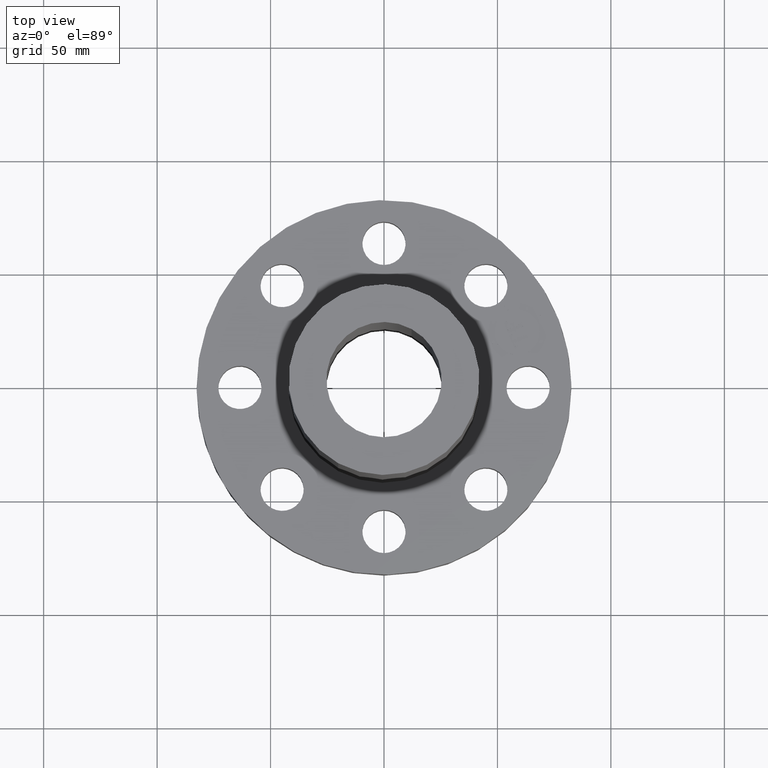
[diagram: clean part render]
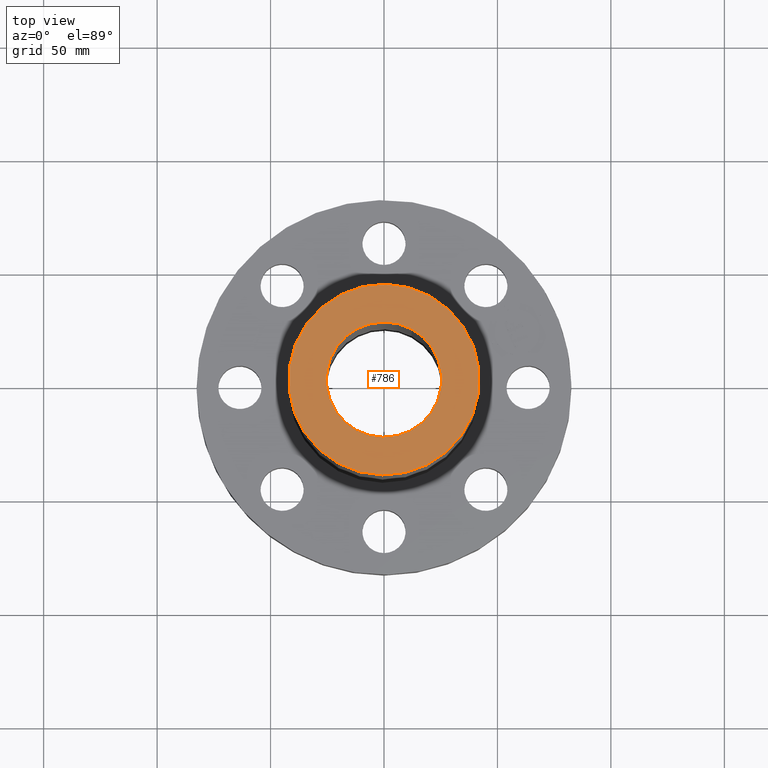
[diagram: same view with one face highlighted and labeled with its STEP entity id]
A machine part, top view. The second image highlights one B-rep face of the part: STEP entity #786.
In plain terms, the highlighted planar face has unit normal (0, 0, -1).
Its self-contained STEP definition (entity closure, byte-faithful):
#371=AXIS2_PLACEMENT_3D('Circle Axis2P3D',#369,#370,$) ;
#390=AXIS2_PLACEMENT_3D('Circle Axis2P3D',#388,#389,$) ;
#762=AXIS2_PLACEMENT_3D('Plane Axis2P3D',#759,#760,#761) ;
#770=AXIS2_PLACEMENT_3D('Circle Axis2P3D',#768,#769,$) ;
#779=AXIS2_PLACEMENT_3D('Circle Axis2P3D',#777,#778,$) ;
#366=CARTESIAN_POINT('Vertex',(0.793449266393,1.45239913993,8.75000000003)) ;
#369=CARTESIAN_POINT('Axis2P3D Location',(0.,0.,8.75000000003)) ;
#373=CARTESIAN_POINT('Vertex',(-0.793449266393,-1.45239913993,8.75000000003)) ;
#388=CARTESIAN_POINT('Axis2P3D Location',(0.,0.,8.75000000003)) ;
#759=CARTESIAN_POINT('Axis2P3D Location',(0.,1.65500000001,8.75000000003)) ;
#768=CARTESIAN_POINT('Axis2P3D Location',(0.,0.,8.75000000003)) ;
#772=CARTESIAN_POINT('Vertex',(-0.479425538606,-0.877582561894,8.75000000004)) ;
#774=CARTESIAN_POINT('Vertex',(0.479425538606,0.877582561894,8.75000000004)) ;
#777=CARTESIAN_POINT('Axis2P3D Location',(0.,0.,8.75000000003)) ;
#370=DIRECTION('Axis2P3D Direction',(0.,0.,-0.0393700787402)) ;
#389=DIRECTION('Axis2P3D Direction',(0.,0.,-0.0393700787402)) ;
#760=DIRECTION('Axis2P3D Direction',(0.,0.,-0.0393700787402)) ;
#761=DIRECTION('Axis2P3D XDirection',(0.0393700787402,0.,0.)) ;
#769=DIRECTION('Axis2P3D Direction',(0.,0.,-0.0393700787402)) ;
#778=DIRECTION('Axis2P3D Direction',(0.,0.,-0.0393700787402)) ;
#765=ORIENTED_EDGE('',*,*,#375,.F.) ;
#766=ORIENTED_EDGE('',*,*,#392,.F.) ;
#783=ORIENTED_EDGE('',*,*,#776,.T.) ;
#784=ORIENTED_EDGE('',*,*,#781,.T.) ;
#785=FACE_BOUND('',#782,.T.) ;
#786=ADVANCED_FACE('PartBody',(#767,#785),#763,.F.) ;
#372=CIRCLE('generated circle',#371,1.65500000001) ;
#391=CIRCLE('generated circle',#390,1.65500000001) ;
#771=CIRCLE('generated circle',#770,1.) ;
#780=CIRCLE('generated circle',#779,1.) ;
#375=EDGE_CURVE('',#367,#374,#372,.T.) ;
#392=EDGE_CURVE('',#374,#367,#391,.T.) ;
#776=EDGE_CURVE('',#773,#775,#771,.T.) ;
#781=EDGE_CURVE('',#775,#773,#780,.T.) ;
#764=EDGE_LOOP('',(#765,#766)) ;
#782=EDGE_LOOP('',(#783,#784)) ;
#767=FACE_OUTER_BOUND('',#764,.T.) ;
#763=PLANE('',#762) ;
#367=VERTEX_POINT('',#366) ;
#374=VERTEX_POINT('',#373) ;
#773=VERTEX_POINT('',#772) ;
#775=VERTEX_POINT('',#774) ;